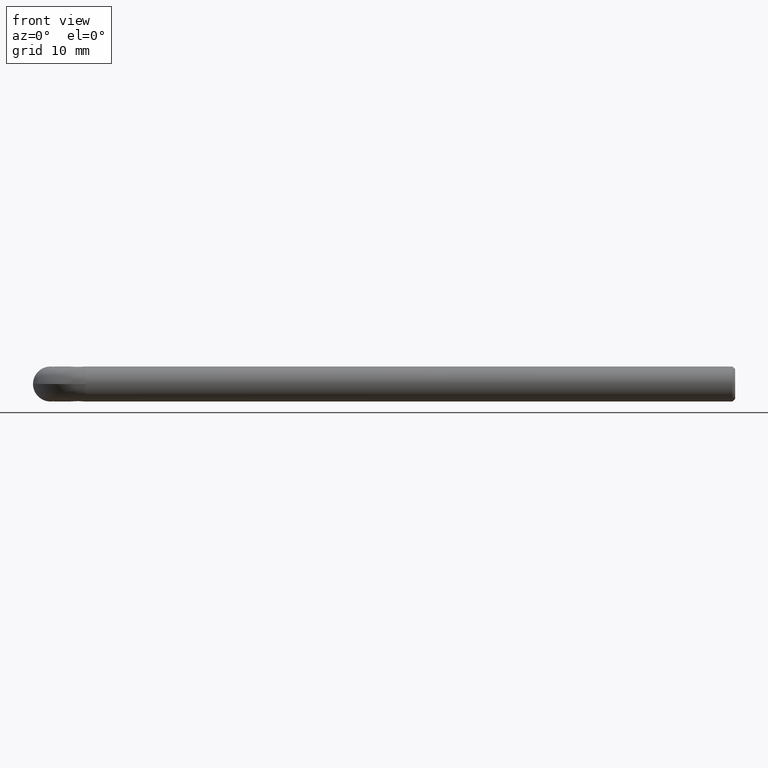
[diagram: clean part render]
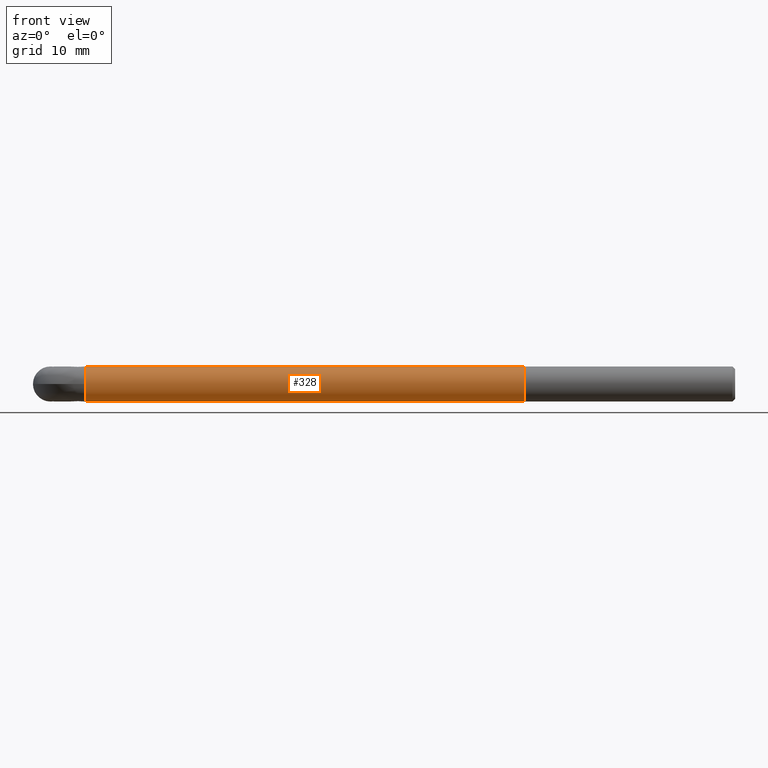
[diagram: same view with one face highlighted and labeled with its STEP entity id]
A machine part, front view. The second image highlights one B-rep face of the part: STEP entity #328.
In plain terms, the highlighted cylindrical surface (edge-blend (fillet) strip) has radius 2 mm, axis along (-1, -0, -0).
Its self-contained STEP definition (entity closure, byte-faithful):
#20 = CARTESIAN_POINT ( 'NONE',  ( 53.99999999999999300, 2.449293598294706400E-016, -2.000000000000000000 ) ) ;
#21 = CARTESIAN_POINT ( 'NONE',  ( 3.999999999999996400, 2.449293598294706400E-016, -2.000000000000000000 ) ) ;
#22 = CYLINDRICAL_SURFACE ( 'NONE', #416, 2.000000000000000000 ) ;
#38 = FACE_OUTER_BOUND ( 'NONE', #164, .T. ) ;
#39 = CARTESIAN_POINT ( 'NONE',  ( 53.99999999999999300, 0.0000000000000000000, 0.0000000000000000000 ) ) ;
#105 = DIRECTION ( 'NONE',  ( 0.0000000000000000000, 0.0000000000000000000, -1.000000000000000000 ) ) ;
#107 = DIRECTION ( 'NONE',  ( -1.000000000000000000, -0.0000000000000000000, -0.0000000000000000000 ) ) ;
#111 = CARTESIAN_POINT ( 'NONE',  ( 3.999999999999996400, 0.0000000000000000000, 0.0000000000000000000 ) ) ;
#118 = CARTESIAN_POINT ( 'NONE',  ( 53.99999999999999300, 0.0000000000000000000, 0.0000000000000000000 ) ) ;
#138 = DIRECTION ( 'NONE',  ( -1.000000000000000000, -0.0000000000000000000, -0.0000000000000000000 ) ) ;
#140 = ORIENTED_EDGE ( 'NONE', *, *, #673, .F. ) ;
#161 = VERTEX_POINT ( 'NONE', #465 ) ;
#164 = EDGE_LOOP ( 'NONE', ( #652, #204, #819, #140, #269 ) ) ;
#186 = VERTEX_POINT ( 'NONE', #21 ) ;
#204 = ORIENTED_EDGE ( 'NONE', *, *, #791, .F. ) ;
#240 = DIRECTION ( 'NONE',  ( 0.0000000000000000000, 8.881784197001252300E-016, -1.000000000000000000 ) ) ;
#269 = ORIENTED_EDGE ( 'NONE', *, *, #642, .F. ) ;
#327 = VERTEX_POINT ( 'NONE', #20 ) ;
#328 = ADVANCED_FACE ( 'NONE', ( #38 ), #22, .T. ) ;
#351 = DIRECTION ( 'NONE',  ( 1.000000000000000000, 0.0000000000000000000, 0.0000000000000000000 ) ) ;
#365 = CARTESIAN_POINT ( 'NONE',  ( 53.99999999999999300, 0.0000000000000000000, 2.000000000000000000 ) ) ;
#374 = AXIS2_PLACEMENT_3D ( 'NONE', #118, #351, #674 ) ;
#382 = DIRECTION ( 'NONE',  ( -1.000000000000000000, -0.0000000000000000000, -0.0000000000000000000 ) ) ;
#387 = DIRECTION ( 'NONE',  ( -1.000000000000000000, -0.0000000000000000000, -0.0000000000000000000 ) ) ;
#416 = AXIS2_PLACEMENT_3D ( 'NONE', #39, #501, #483 ) ;
#435 = EDGE_CURVE ( 'NONE', #327, #186, #766, .T. ) ;
#465 = CARTESIAN_POINT ( 'NONE',  ( 3.999999999999996400, 0.0000000000000000000, 2.000000000000000000 ) ) ;
#483 = DIRECTION ( 'NONE',  ( 0.0000000000000000000, 0.0000000000000000000, 1.000000000000000000 ) ) ;
#501 = DIRECTION ( 'NONE',  ( -1.000000000000000000, -0.0000000000000000000, -0.0000000000000000000 ) ) ;
#510 = VERTEX_POINT ( 'NONE', #661 ) ;
#512 = CARTESIAN_POINT ( 'NONE',  ( 53.99999999999999300, 0.0000000000000000000, 2.000000000000000000 ) ) ;
#527 = CARTESIAN_POINT ( 'NONE',  ( 3.999999999999996400, 0.0000000000000000000, 0.0000000000000000000 ) ) ;
#553 = AXIS2_PLACEMENT_3D ( 'NONE', #111, #107, #105 ) ;
#556 = EDGE_CURVE ( 'NONE', #563, #161, #720, .T. ) ;
#563 = VERTEX_POINT ( 'NONE', #512 ) ;
#576 = CIRCLE ( 'NONE', #374, 2.000000000000000000 ) ;
#596 = AXIS2_PLACEMENT_3D ( 'NONE', #527, #138, #240 ) ;
#636 = CIRCLE ( 'NONE', #553, 2.000000000000000000 ) ;
#642 = EDGE_CURVE ( 'NONE', #186, #510, #636, .T. ) ;
#652 = ORIENTED_EDGE ( 'NONE', *, *, #435, .F. ) ;
#661 = CARTESIAN_POINT ( 'NONE',  ( 3.999999999999989800, -2.000000000000000000, 1.681234876209540000E-009 ) ) ;
#673 = EDGE_CURVE ( 'NONE', #510, #161, #691, .T. ) ;
#674 = DIRECTION ( 'NONE',  ( 0.0000000000000000000, 0.0000000000000000000, -1.000000000000000000 ) ) ;
#691 = CIRCLE ( 'NONE', #596, 2.000000000000000000 ) ;
#720 = LINE ( 'NONE', #365, #733 ) ;
#733 = VECTOR ( 'NONE', #382, 1000.000000000000000 ) ;
#758 = CARTESIAN_POINT ( 'NONE',  ( 53.99999999999999300, 2.449293598294706400E-016, -2.000000000000000000 ) ) ;
#766 = LINE ( 'NONE', #758, #814 ) ;
#791 = EDGE_CURVE ( 'NONE', #563, #327, #576, .T. ) ;
#814 = VECTOR ( 'NONE', #387, 1000.000000000000000 ) ;
#819 = ORIENTED_EDGE ( 'NONE', *, *, #556, .T. ) ;